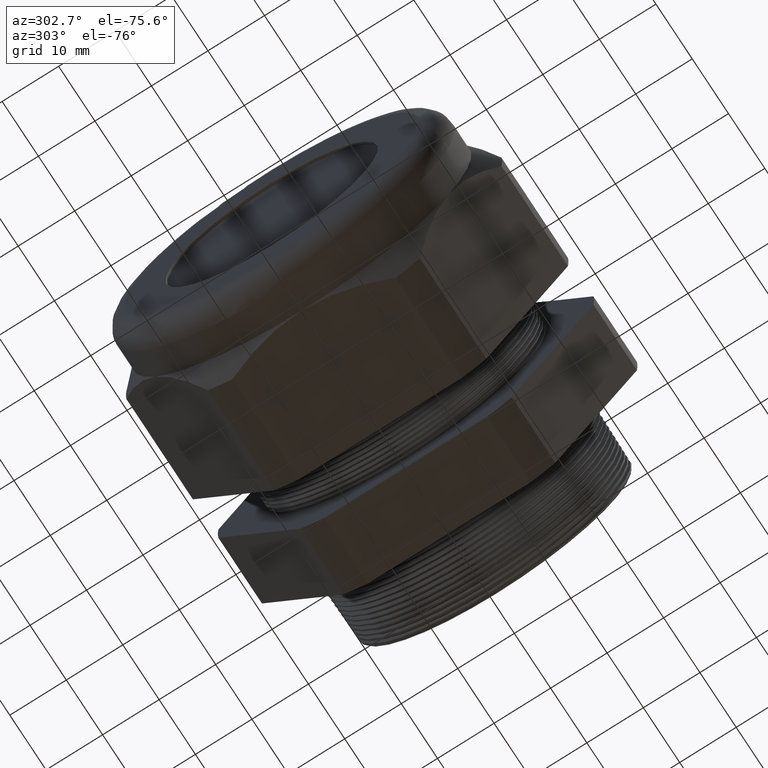
[diagram: clean part render]
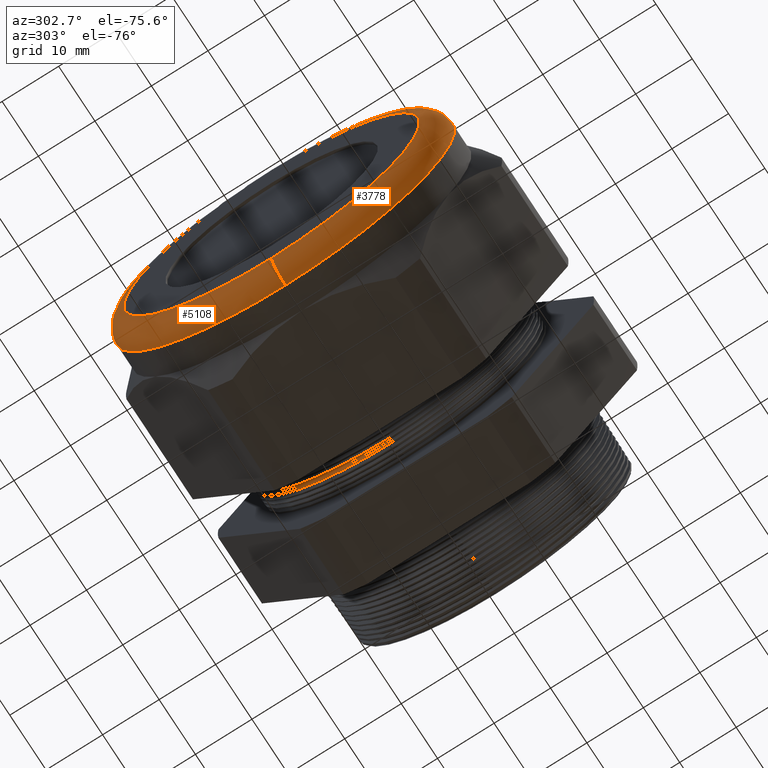
[diagram: same view with one multi-face feature highlighted, each face labeled with its STEP entity id]
A machine part, auxiliary view. The highlighted faces form ONE feature: a constant-radius fillet chain: 2 tangent blend faces with common blend radius 3.81 mm. The faces share edges in the B-rep.
Their STEP definitions:
[1] entity #5108 (Torus):
#2 = ORIENTED_EDGE ( 'NONE', *, *, #9, .F. ) ;
#3 = VERTEX_POINT ( 'NONE', #112 ) ;
#9 = EDGE_CURVE ( 'NONE', #5047, #3, #94, .T. ) ;
#24 = EDGE_CURVE ( 'NONE', #3, #5063, #141, .T. ) ;
#25 = ORIENTED_EDGE ( 'NONE', *, *, #24, .F. ) ;
#90 = DIRECTION ( 'NONE',  ( 0.0000000000000000000, 0.0000000000000000000, -1.000000000000000000 ) ) ;
#91 = DIRECTION ( 'NONE',  ( 0.0000000000000000000, -1.000000000000000000, 0.0000000000000000000 ) ) ;
#92 = CARTESIAN_POINT ( 'NONE',  ( -2.089999999999999400, 0.0000000000000000000, 1.030000000000000000 ) ) ;
#93 = AXIS2_PLACEMENT_3D ( 'NONE', #92, #91, #90 ) ;
#94 = CIRCLE ( 'NONE', #93, 0.1500000000000000500 ) ;
#112 = CARTESIAN_POINT ( 'NONE',  ( -2.239999999999999800, 0.0000000000000000000, 1.030000000000000000 ) ) ;
#138 = DIRECTION ( 'NONE',  ( 0.0000000000000000000, 0.0000000000000000000, 1.000000000000000000 ) ) ;
#139 = DIRECTION ( 'NONE',  ( -1.000000000000000000, 0.0000000000000000000, 0.0000000000000000000 ) ) ;
#140 = AXIS2_PLACEMENT_3D ( 'NONE', #147, #139, #138 ) ;
#141 = CIRCLE ( 'NONE', #140, 1.030000000000000000 ) ;
#147 = CARTESIAN_POINT ( 'NONE',  ( -2.239999999999999800, 0.0000000000000000000, 0.0000000000000000000 ) ) ;
#3153 = DIRECTION ( 'NONE',  ( 0.0000000000000000000, 1.000000000000000000, 1.224646799147353200E-016 ) ) ;
#3154 = CARTESIAN_POINT ( 'NONE',  ( -2.089999999999999400, 1.261386203121773700E-016, -1.030000000000000000 ) ) ;
#3155 = AXIS2_PLACEMENT_3D ( 'NONE', #3154, #3153, #3213 ) ;
#3156 = CIRCLE ( 'NONE', #3155, 0.1500000000000000500 ) ;
#3189 = DIRECTION ( 'NONE',  ( 0.0000000000000000000, 0.0000000000000000000, 1.000000000000000000 ) ) ;
#3190 = DIRECTION ( 'NONE',  ( 1.000000000000000000, 0.0000000000000000000, 0.0000000000000000000 ) ) ;
#3191 = CARTESIAN_POINT ( 'NONE',  ( -2.089999999999999400, 0.0000000000000000000, 0.0000000000000000000 ) ) ;
#3192 = AXIS2_PLACEMENT_3D ( 'NONE', #3191, #3190, #3189 ) ;
#3193 = CIRCLE ( 'NONE', #3192, 1.179999999999999900 ) ;
#3213 = DIRECTION ( 'NONE',  ( 0.0000000000000000000, -1.224646799147352500E-016, 1.000000000000000000 ) ) ;
#3216 = CARTESIAN_POINT ( 'NONE',  ( -2.239999999999999800, 1.353234713057825400E-016, -1.030000000000000000 ) ) ;
#3234 = CARTESIAN_POINT ( 'NONE',  ( -2.089999999999999400, 0.0000000000000000000, -1.179999999999999900 ) ) ;
#3235 = CARTESIAN_POINT ( 'NONE',  ( -2.089999999999999400, 1.445083222993876800E-016, 1.179999999999999900 ) ) ;
#3330 = DIRECTION ( 'NONE',  ( 0.0000000000000000000, 0.0000000000000000000, 1.000000000000000000 ) ) ;
#3331 = DIRECTION ( 'NONE',  ( -1.000000000000000000, 0.0000000000000000000, 0.0000000000000000000 ) ) ;
#3332 = CARTESIAN_POINT ( 'NONE',  ( -2.089999999999999400, 0.0000000000000000000, 0.0000000000000000000 ) ) ;
#3333 = AXIS2_PLACEMENT_3D ( 'NONE', #3332, #3331, #3330 ) ;
#3335 = TOROIDAL_SURFACE ( 'NONE', #3333, 1.030000000000000000, 0.1499999999999999900 ) ;
#3336 = FACE_OUTER_BOUND ( 'NONE', #5025, .T. ) ;
#5025 = EDGE_LOOP ( 'NONE', ( #5029, #5050, #25, #2 ) ) ;
#5029 = ORIENTED_EDGE ( 'NONE', *, *, #5041, .F. ) ;
#5034 = EDGE_CURVE ( 'NONE', #5048, #5063, #3156, .T. ) ;
#5041 = EDGE_CURVE ( 'NONE', #5048, #5047, #3193, .T. ) ;
#5047 = VERTEX_POINT ( 'NONE', #3235 ) ;
#5048 = VERTEX_POINT ( 'NONE', #3234 ) ;
#5050 = ORIENTED_EDGE ( 'NONE', *, *, #5034, .T. ) ;
#5063 = VERTEX_POINT ( 'NONE', #3216 ) ;
#5108 = ADVANCED_FACE ( 'NONE', ( #3336 ), #3335, .T. ) ;
[2] entity #3778 (Torus):
#3 = VERTEX_POINT ( 'NONE', #112 ) ;
#9 = EDGE_CURVE ( 'NONE', #5047, #3, #94, .T. ) ;
#90 = DIRECTION ( 'NONE',  ( 0.0000000000000000000, 0.0000000000000000000, -1.000000000000000000 ) ) ;
#91 = DIRECTION ( 'NONE',  ( 0.0000000000000000000, -1.000000000000000000, 0.0000000000000000000 ) ) ;
#92 = CARTESIAN_POINT ( 'NONE',  ( -2.089999999999999400, 0.0000000000000000000, 1.030000000000000000 ) ) ;
#93 = AXIS2_PLACEMENT_3D ( 'NONE', #92, #91, #90 ) ;
#94 = CIRCLE ( 'NONE', #93, 0.1500000000000000500 ) ;
#112 = CARTESIAN_POINT ( 'NONE',  ( -2.239999999999999800, 0.0000000000000000000, 1.030000000000000000 ) ) ;
#904 = DIRECTION ( 'NONE',  ( 0.0000000000000000000, 0.0000000000000000000, 1.000000000000000000 ) ) ;
#905 = DIRECTION ( 'NONE',  ( -1.000000000000000000, 0.0000000000000000000, 0.0000000000000000000 ) ) ;
#906 = AXIS2_PLACEMENT_3D ( 'NONE', #913, #905, #904 ) ;
#907 = TOROIDAL_SURFACE ( 'NONE', #906, 1.030000000000000000, 0.1499999999999999900 ) ;
#908 = FACE_OUTER_BOUND ( 'NONE', #5012, .T. ) ;
#913 = CARTESIAN_POINT ( 'NONE',  ( -2.089999999999999400, 0.0000000000000000000, 0.0000000000000000000 ) ) ;
#925 = DIRECTION ( 'NONE',  ( 0.0000000000000000000, 0.0000000000000000000, 1.000000000000000000 ) ) ;
#926 = DIRECTION ( 'NONE',  ( 1.000000000000000000, 0.0000000000000000000, 0.0000000000000000000 ) ) ;
#927 = CARTESIAN_POINT ( 'NONE',  ( -2.089999999999999400, 0.0000000000000000000, 0.0000000000000000000 ) ) ;
#928 = AXIS2_PLACEMENT_3D ( 'NONE', #927, #926, #925 ) ;
#929 = CIRCLE ( 'NONE', #928, 1.179999999999999900 ) ;
#2140 = DIRECTION ( 'NONE',  ( 0.0000000000000000000, 0.0000000000000000000, 1.000000000000000000 ) ) ;
#2141 = DIRECTION ( 'NONE',  ( -1.000000000000000000, 0.0000000000000000000, 0.0000000000000000000 ) ) ;
#2142 = CARTESIAN_POINT ( 'NONE',  ( -2.239999999999999800, 0.0000000000000000000, 0.0000000000000000000 ) ) ;
#2143 = AXIS2_PLACEMENT_3D ( 'NONE', #2142, #2141, #2140 ) ;
#2144 = CIRCLE ( 'NONE', #2143, 1.030000000000000000 ) ;
#3153 = DIRECTION ( 'NONE',  ( 0.0000000000000000000, 1.000000000000000000, 1.224646799147353200E-016 ) ) ;
#3154 = CARTESIAN_POINT ( 'NONE',  ( -2.089999999999999400, 1.261386203121773700E-016, -1.030000000000000000 ) ) ;
#3155 = AXIS2_PLACEMENT_3D ( 'NONE', #3154, #3153, #3213 ) ;
#3156 = CIRCLE ( 'NONE', #3155, 0.1500000000000000500 ) ;
#3213 = DIRECTION ( 'NONE',  ( 0.0000000000000000000, -1.224646799147352500E-016, 1.000000000000000000 ) ) ;
#3216 = CARTESIAN_POINT ( 'NONE',  ( -2.239999999999999800, 1.353234713057825400E-016, -1.030000000000000000 ) ) ;
#3234 = CARTESIAN_POINT ( 'NONE',  ( -2.089999999999999400, 0.0000000000000000000, -1.179999999999999900 ) ) ;
#3235 = CARTESIAN_POINT ( 'NONE',  ( -2.089999999999999400, 1.445083222993876800E-016, 1.179999999999999900 ) ) ;
#3757 = EDGE_CURVE ( 'NONE', #5047, #5048, #929, .T. ) ;
#3775 = ORIENTED_EDGE ( 'NONE', *, *, #3757, .F. ) ;
#3777 = ORIENTED_EDGE ( 'NONE', *, *, #5034, .F. ) ;
#3778 = ADVANCED_FACE ( 'NONE', ( #908 ), #907, .T. ) ;
#3783 = ORIENTED_EDGE ( 'NONE', *, *, #9, .T. ) ;
#3785 = ORIENTED_EDGE ( 'NONE', *, *, #4478, .F. ) ;
#4478 = EDGE_CURVE ( 'NONE', #5063, #3, #2144, .T. ) ;
#5012 = EDGE_LOOP ( 'NONE', ( #3777, #3775, #3783, #3785 ) ) ;
#5034 = EDGE_CURVE ( 'NONE', #5048, #5063, #3156, .T. ) ;
#5047 = VERTEX_POINT ( 'NONE', #3235 ) ;
#5048 = VERTEX_POINT ( 'NONE', #3234 ) ;
#5063 = VERTEX_POINT ( 'NONE', #3216 ) ;